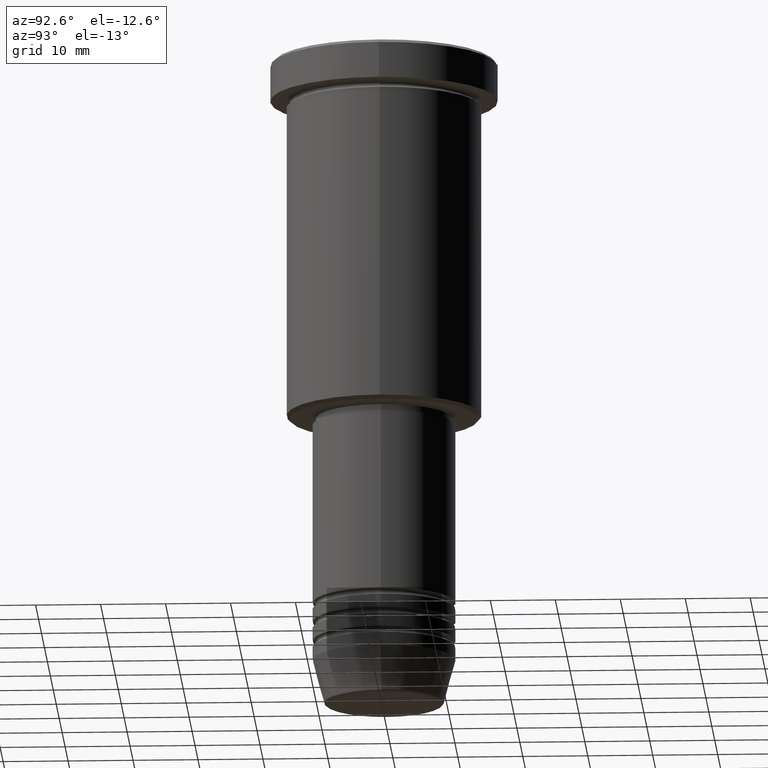
[diagram: clean part render]
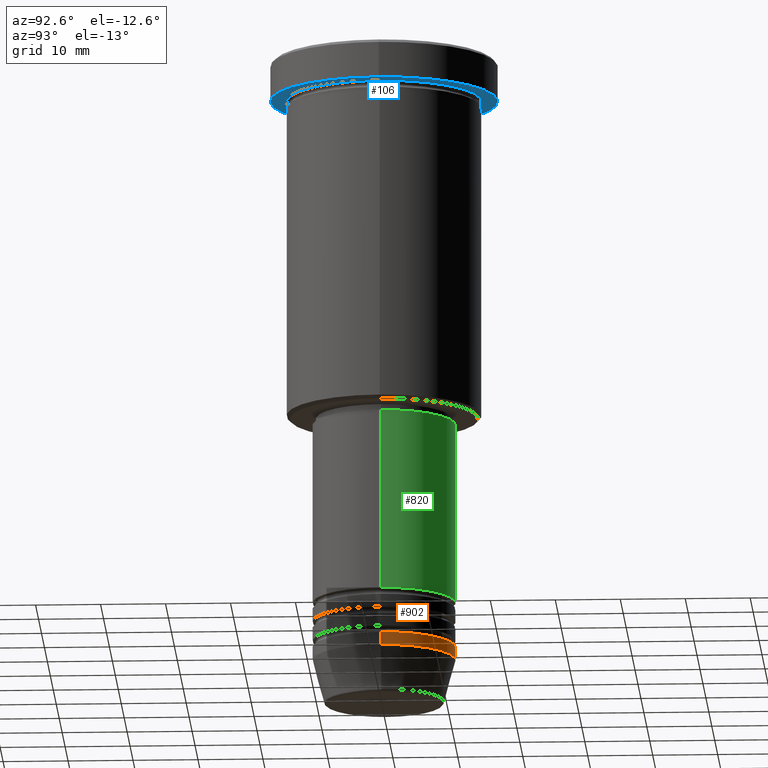
[diagram: same view with three faces highlighted in distinct colors, each labeled with its STEP entity id]
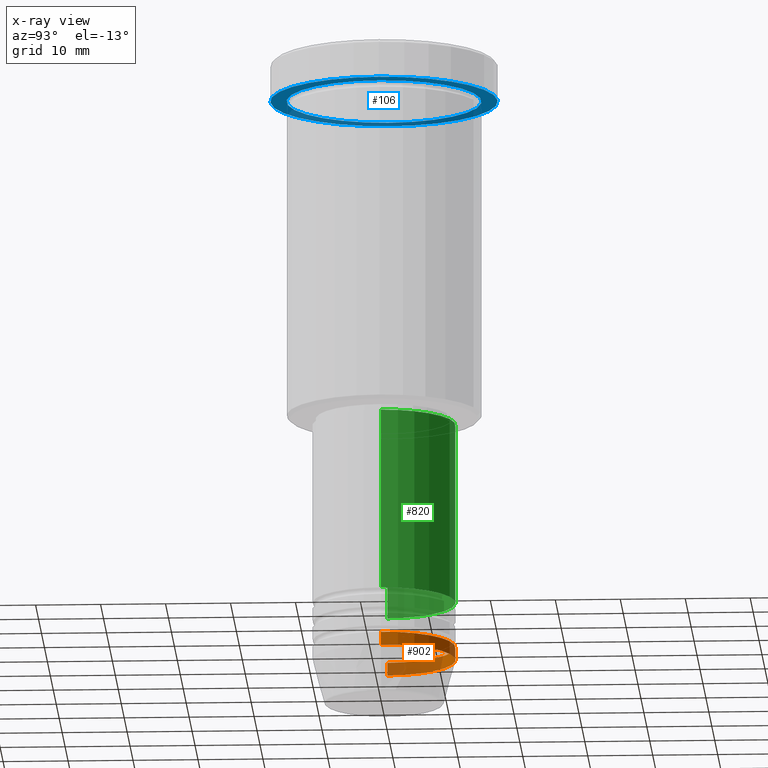
[diagram: x-ray of the same camera — body ghosted, the three highlighted faces saturated]
A machine part, auxiliary view with three faces highlighted in distinct colors.
The next image is the same camera in x-ray (body ghosted, the three faces saturated) — at least one of them is partly hidden behind the body in this view.
Their STEP definitions:

[orange] entity #902 — the highlighted cylindrical surface (partial cylindrical patch) has radius 11 mm, axis along (-0, -0, 1).
#27 = DIRECTION ( 'NONE',  ( -0.000000000000000000, -0.000000000000000000, 1.000000000000000000 ) ) ;
#28 = AXIS2_PLACEMENT_3D ( 'NONE', #532, #393, #749 ) ;
#98 = CARTESIAN_POINT ( 'NONE',  ( 11.00000000000000000, 0.000000000000000000, -94.00000000000000000 ) ) ;
#130 = ORIENTED_EDGE ( 'NONE', *, *, #766, .F. ) ;
#138 = EDGE_CURVE ( 'NONE', #368, #843, #937, .T. ) ;
#159 = FACE_OUTER_BOUND ( 'NONE', #350, .T. ) ;
#173 = CARTESIAN_POINT ( 'NONE',  ( 11.00000000000000000, 0.000000000000000000, -92.00000000000000000 ) ) ;
#177 = ORIENTED_EDGE ( 'NONE', *, *, #138, .F. ) ;
#225 = EDGE_CURVE ( 'NONE', #717, #1179, #1141, .T. ) ;
#241 = DIRECTION ( 'NONE',  ( -0.000000000000000000, -0.000000000000000000, 1.000000000000000000 ) ) ;
#297 = ORIENTED_EDGE ( 'NONE', *, *, #555, .T. ) ;
#350 = EDGE_LOOP ( 'NONE', ( #297, #1090, #130, #177 ) ) ;
#368 = VERTEX_POINT ( 'NONE', #98 ) ;
#391 = CARTESIAN_POINT ( 'NONE',  ( 11.00000000000000000, 0.000000000000000000, 0.000000000000000000 ) ) ;
#393 = DIRECTION ( 'NONE',  ( -0.000000000000000000, -0.000000000000000000, 1.000000000000000000 ) ) ;
#473 = DIRECTION ( 'NONE',  ( 1.000000000000000000, 0.000000000000000000, 0.000000000000000000 ) ) ;
#521 = AXIS2_PLACEMENT_3D ( 'NONE', #571, #27, #473 ) ;
#532 = CARTESIAN_POINT ( 'NONE',  ( 0.000000000000000000, 0.000000000000000000, 0.000000000000000000 ) ) ;
#555 = EDGE_CURVE ( 'NONE', #368, #717, #834, .T. ) ;
#571 = CARTESIAN_POINT ( 'NONE',  ( 0.000000000000000000, 0.000000000000000000, -94.00000000000000000 ) ) ;
#580 = VECTOR ( 'NONE', #763, 1000.000000000000000 ) ;
#607 = DIRECTION ( 'NONE',  ( 1.000000000000000000, 0.000000000000000000, 0.000000000000000000 ) ) ;
#627 = CYLINDRICAL_SURFACE ( 'NONE', #28, 11.00000000000000000 ) ;
#660 = VECTOR ( 'NONE', #871, 1000.000000000000000 ) ;
#674 = CARTESIAN_POINT ( 'NONE',  ( -11.00000000000000000, 1.347111479062088405E-15, -92.00000000000000000 ) ) ;
#702 = CARTESIAN_POINT ( 'NONE',  ( -11.00000000000000000, 1.347111479062088405E-15, 0.000000000000000000 ) ) ;
#717 = VERTEX_POINT ( 'NONE', #1135 ) ;
#749 = DIRECTION ( 'NONE',  ( 1.000000000000000000, 0.000000000000000000, 0.000000000000000000 ) ) ;
#763 = DIRECTION ( 'NONE',  ( -0.000000000000000000, -0.000000000000000000, 1.000000000000000000 ) ) ;
#766 = EDGE_CURVE ( 'NONE', #843, #1179, #793, .T. ) ;
#793 = CIRCLE ( 'NONE', #1131, 11.00000000000000000 ) ;
#834 = CIRCLE ( 'NONE', #521, 11.00000000000000000 ) ;
#843 = VERTEX_POINT ( 'NONE', #173 ) ;
#871 = DIRECTION ( 'NONE',  ( -0.000000000000000000, -0.000000000000000000, 1.000000000000000000 ) ) ;
#902 = ADVANCED_FACE ( 'NONE', ( #159 ), #627, .T. ) ;
#937 = LINE ( 'NONE', #391, #580 ) ;
#1055 = CARTESIAN_POINT ( 'NONE',  ( 0.000000000000000000, 0.000000000000000000, -92.00000000000000000 ) ) ;
#1090 = ORIENTED_EDGE ( 'NONE', *, *, #225, .T. ) ;
#1131 = AXIS2_PLACEMENT_3D ( 'NONE', #1055, #241, #607 ) ;
#1135 = CARTESIAN_POINT ( 'NONE',  ( -11.00000000000000000, 1.347111479062088405E-15, -94.00000000000000000 ) ) ;
#1141 = LINE ( 'NONE', #702, #660 ) ;
#1179 = VERTEX_POINT ( 'NONE', #674 ) ;

[blue] entity #106 — the highlighted planar face has unit normal (0, 0, -1).
#23 = CIRCLE ( 'NONE', #694, 17.50000000000000000 ) ;
#106 = ADVANCED_FACE ( 'NONE', ( #300, #848 ), #842, .T. ) ;
#192 = EDGE_CURVE ( 'NONE', #649, #362, #23, .T. ) ;
#235 = CARTESIAN_POINT ( 'NONE',  ( 0.000000000000000000, 0.000000000000000000, -5.999999999999995559 ) ) ;
#268 = EDGE_LOOP ( 'NONE', ( #791, #456 ) ) ;
#290 = CARTESIAN_POINT ( 'NONE',  ( 0.000000000000000000, 17.50000000000000000, -5.999999999999995559 ) ) ;
#292 = AXIS2_PLACEMENT_3D ( 'NONE', #400, #862, #787 ) ;
#300 = FACE_BOUND ( 'NONE', #268, .T. ) ;
#328 = CARTESIAN_POINT ( 'NONE',  ( -17.50000000000000000, 2.143131898507868248E-15, -5.999999999999995559 ) ) ;
#347 = CARTESIAN_POINT ( 'NONE',  ( 17.50000000000000000, 0.000000000000000000, -5.999999999999995559 ) ) ;
#358 = EDGE_CURVE ( 'NONE', #362, #649, #1113, .T. ) ;
#362 = VERTEX_POINT ( 'NONE', #347 ) ;
#365 = DIRECTION ( 'NONE',  ( -0.000000000000000000, -0.000000000000000000, 1.000000000000000000 ) ) ;
#388 = CIRCLE ( 'NONE', #985, 15.00000000000000000 ) ;
#389 = CARTESIAN_POINT ( 'NONE',  ( 0.000000000000000000, 0.000000000000000000, -5.999999999999995559 ) ) ;
#400 = CARTESIAN_POINT ( 'NONE',  ( 0.000000000000000000, 0.000000000000000000, -5.999999999999995559 ) ) ;
#408 = DIRECTION ( 'NONE',  ( 1.000000000000000000, 0.000000000000000000, 0.000000000000000000 ) ) ;
#413 = DIRECTION ( 'NONE',  ( -0.000000000000000000, -0.000000000000000000, 1.000000000000000000 ) ) ;
#456 = ORIENTED_EDGE ( 'NONE', *, *, #954, .T. ) ;
#557 = DIRECTION ( 'NONE',  ( -1.000000000000000000, 0.000000000000000000, 0.000000000000000000 ) ) ;
#578 = DIRECTION ( 'NONE',  ( -0.000000000000000000, -0.000000000000000000, 1.000000000000000000 ) ) ;
#618 = ORIENTED_EDGE ( 'NONE', *, *, #192, .F. ) ;
#649 = VERTEX_POINT ( 'NONE', #328 ) ;
#651 = DIRECTION ( 'NONE',  ( 1.000000000000000000, 0.000000000000000000, 0.000000000000000000 ) ) ;
#656 = DIRECTION ( 'NONE',  ( -1.000000000000000000, 0.000000000000000000, -0.000000000000000000 ) ) ;
#678 = AXIS2_PLACEMENT_3D ( 'NONE', #1008, #365, #651 ) ;
#684 = EDGE_CURVE ( 'NONE', #760, #1149, #1079, .T. ) ;
#690 = CARTESIAN_POINT ( 'NONE',  ( 15.00000000000000000, 1.836970198721029589E-15, -5.999999999999994671 ) ) ;
#692 = CARTESIAN_POINT ( 'NONE',  ( -15.00000000000000000, 0.000000000000000000, -5.999999999999994671 ) ) ;
#694 = AXIS2_PLACEMENT_3D ( 'NONE', #235, #413, #408 ) ;
#760 = VERTEX_POINT ( 'NONE', #692 ) ;
#787 = DIRECTION ( 'NONE',  ( -1.000000000000000000, 0.000000000000000000, 0.000000000000000000 ) ) ;
#791 = ORIENTED_EDGE ( 'NONE', *, *, #684, .T. ) ;
#842 = PLANE ( 'NONE',  #1020 ) ;
#848 = FACE_OUTER_BOUND ( 'NONE', #1035, .T. ) ;
#862 = DIRECTION ( 'NONE',  ( -0.000000000000000000, -0.000000000000000000, 1.000000000000000000 ) ) ;
#954 = EDGE_CURVE ( 'NONE', #1149, #760, #388, .T. ) ;
#985 = AXIS2_PLACEMENT_3D ( 'NONE', #389, #578, #557 ) ;
#1008 = CARTESIAN_POINT ( 'NONE',  ( 0.000000000000000000, 0.000000000000000000, -5.999999999999995559 ) ) ;
#1020 = AXIS2_PLACEMENT_3D ( 'NONE', #290, #1034, #656 ) ;
#1034 = DIRECTION ( 'NONE',  ( 0.000000000000000000, 0.000000000000000000, -1.000000000000000000 ) ) ;
#1035 = EDGE_LOOP ( 'NONE', ( #1119, #618 ) ) ;
#1079 = CIRCLE ( 'NONE', #292, 15.00000000000000000 ) ;
#1113 = CIRCLE ( 'NONE', #678, 17.50000000000000000 ) ;
#1119 = ORIENTED_EDGE ( 'NONE', *, *, #358, .F. ) ;
#1149 = VERTEX_POINT ( 'NONE', #690 ) ;

[green] entity #820 — the highlighted cylindrical surface (partial cylindrical patch) has radius 11 mm, axis along (-0, -0, 1).
#18 = CARTESIAN_POINT ( 'NONE',  ( 11.00000000000000000, 0.000000000000000000, -84.99999999999997158 ) ) ;
#30 = ORIENTED_EDGE ( 'NONE', *, *, #1107, .T. ) ;
#77 = CYLINDRICAL_SURFACE ( 'NONE', #219, 11.00000000000000000 ) ;
#110 = LINE ( 'NONE', #124, #238 ) ;
#115 = ORIENTED_EDGE ( 'NONE', *, *, #197, .F. ) ;
#124 = CARTESIAN_POINT ( 'NONE',  ( 11.00000000000000000, 0.000000000000000000, 0.000000000000000000 ) ) ;
#150 = EDGE_CURVE ( 'NONE', #1005, #1164, #110, .T. ) ;
#180 = CIRCLE ( 'NONE', #1145, 11.00000000000000000 ) ;
#189 = DIRECTION ( 'NONE',  ( 1.000000000000000000, 0.000000000000000000, 0.000000000000000000 ) ) ;
#197 = EDGE_CURVE ( 'NONE', #1164, #1014, #180, .T. ) ;
#199 = CARTESIAN_POINT ( 'NONE',  ( -11.00000000000000000, 1.347111479062088405E-15, -84.99999999999997158 ) ) ;
#219 = AXIS2_PLACEMENT_3D ( 'NONE', #828, #354, #189 ) ;
#238 = VECTOR ( 'NONE', #378, 1000.000000000000000 ) ;
#315 = CARTESIAN_POINT ( 'NONE',  ( 0.000000000000000000, 0.000000000000000000, -56.99999999999996447 ) ) ;
#354 = DIRECTION ( 'NONE',  ( -0.000000000000000000, -0.000000000000000000, 1.000000000000000000 ) ) ;
#378 = DIRECTION ( 'NONE',  ( -0.000000000000000000, -0.000000000000000000, 1.000000000000000000 ) ) ;
#384 = VECTOR ( 'NONE', #534, 1000.000000000000000 ) ;
#422 = EDGE_CURVE ( 'NONE', #500, #1014, #630, .T. ) ;
#424 = ORIENTED_EDGE ( 'NONE', *, *, #422, .T. ) ;
#489 = ORIENTED_EDGE ( 'NONE', *, *, #150, .F. ) ;
#500 = VERTEX_POINT ( 'NONE', #199 ) ;
#526 = DIRECTION ( 'NONE',  ( -0.000000000000000000, -0.000000000000000000, 1.000000000000000000 ) ) ;
#534 = DIRECTION ( 'NONE',  ( -0.000000000000000000, -0.000000000000000000, 1.000000000000000000 ) ) ;
#535 = EDGE_LOOP ( 'NONE', ( #30, #424, #115, #489 ) ) ;
#587 = DIRECTION ( 'NONE',  ( -0.000000000000000000, -0.000000000000000000, 1.000000000000000000 ) ) ;
#630 = LINE ( 'NONE', #1089, #384 ) ;
#683 = DIRECTION ( 'NONE',  ( 1.000000000000000000, 0.000000000000000000, 0.000000000000000000 ) ) ;
#816 = FACE_OUTER_BOUND ( 'NONE', #535, .T. ) ;
#820 = ADVANCED_FACE ( 'NONE', ( #816 ), #77, .T. ) ;
#828 = CARTESIAN_POINT ( 'NONE',  ( 0.000000000000000000, 0.000000000000000000, 0.000000000000000000 ) ) ;
#929 = AXIS2_PLACEMENT_3D ( 'NONE', #953, #587, #1046 ) ;
#953 = CARTESIAN_POINT ( 'NONE',  ( 0.000000000000000000, 0.000000000000000000, -84.99999999999997158 ) ) ;
#1005 = VERTEX_POINT ( 'NONE', #18 ) ;
#1014 = VERTEX_POINT ( 'NONE', #1114 ) ;
#1046 = DIRECTION ( 'NONE',  ( 1.000000000000000000, 0.000000000000000000, 0.000000000000000000 ) ) ;
#1061 = CARTESIAN_POINT ( 'NONE',  ( 11.00000000000000000, 0.000000000000000000, -56.99999999999996447 ) ) ;
#1089 = CARTESIAN_POINT ( 'NONE',  ( -11.00000000000000000, 1.347111479062088405E-15, 0.000000000000000000 ) ) ;
#1107 = EDGE_CURVE ( 'NONE', #1005, #500, #1171, .T. ) ;
#1114 = CARTESIAN_POINT ( 'NONE',  ( -11.00000000000000000, 1.347111479062088405E-15, -56.99999999999996447 ) ) ;
#1145 = AXIS2_PLACEMENT_3D ( 'NONE', #315, #526, #683 ) ;
#1164 = VERTEX_POINT ( 'NONE', #1061 ) ;
#1171 = CIRCLE ( 'NONE', #929, 11.00000000000000000 ) ;